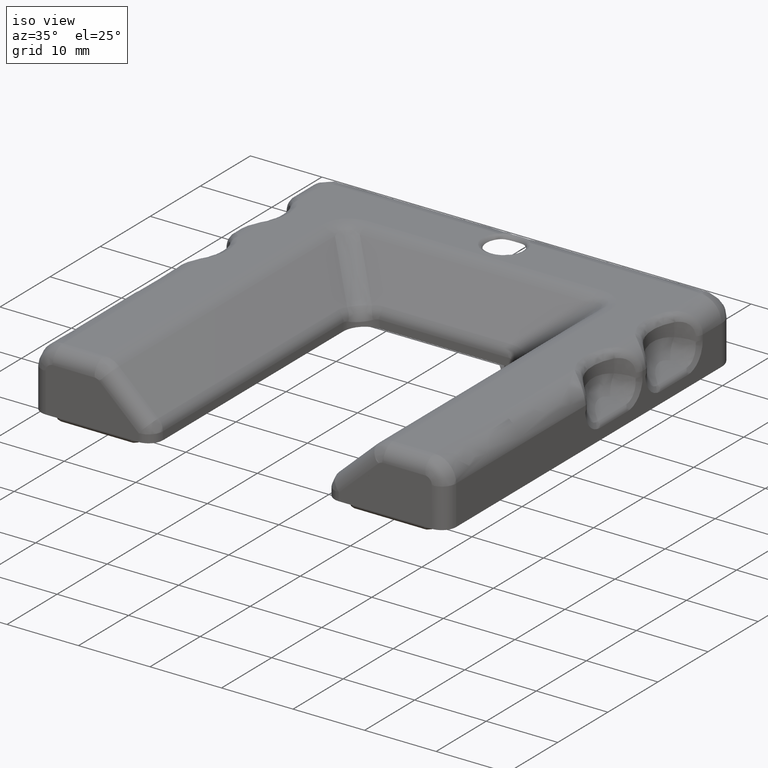
[diagram: clean part render]
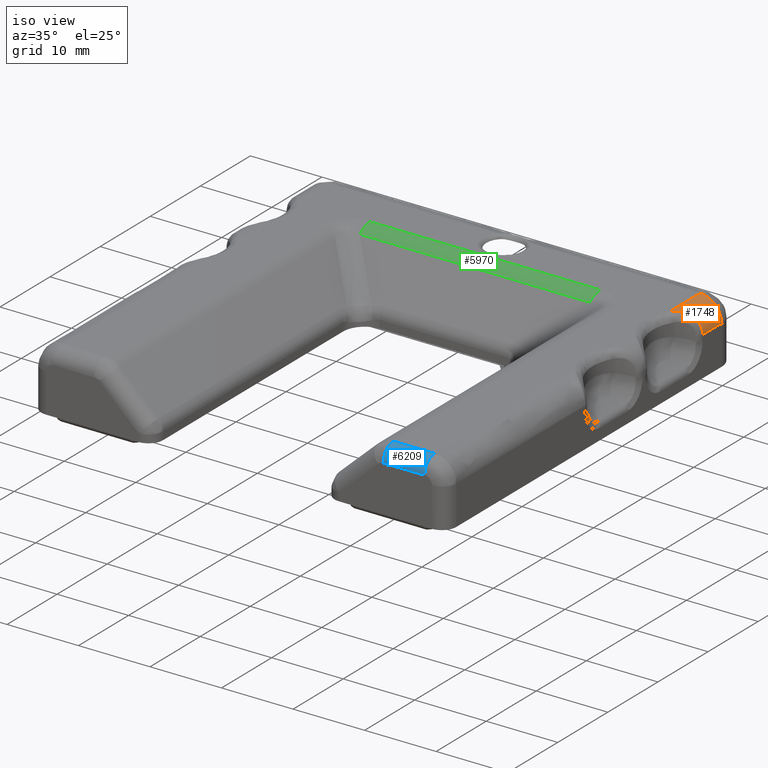
[diagram: same view with three faces highlighted in distinct colors, each labeled with its STEP entity id]
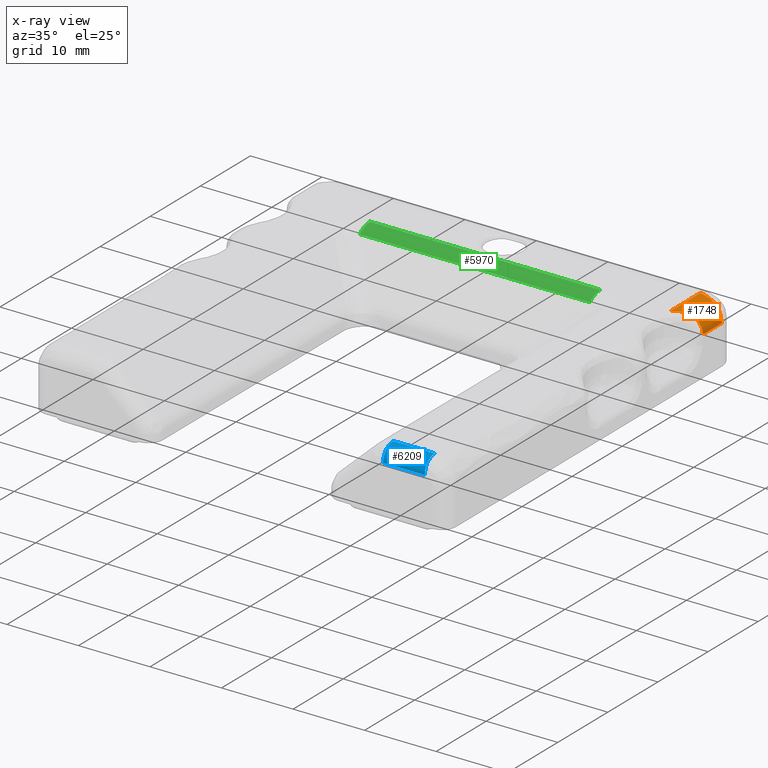
[diagram: x-ray of the same camera — body ghosted, the three highlighted faces saturated]
A machine part, iso view with three faces highlighted in distinct colors.
The next image is the same camera in x-ray (body ghosted, the three faces saturated) — at least one of them is partly hidden behind the body in this view.
Their STEP definitions:

[orange] entity #1748 — the highlighted face is a freeform B-spline surface patch.
#1257=CARTESIAN_POINT('',(28.999999999131099,-3.000000000000114,6.500000000004551));
#1258=VERTEX_POINT('',#1257);
#1264=CARTESIAN_POINT('',(28.999999999131099,-6.757300911116460,6.500000000004571));
#1265=VERTEX_POINT('',#1264);
#1266=CARTESIAN_POINT('',(28.999999999131099,-3.000000000000114,6.500000000004551));
#1267=CARTESIAN_POINT('',(28.999999999131099,-6.757300911116460,6.500000000004571));
#1268=QUASI_UNIFORM_CURVE('',1,(#1266,#1267),.UNSPECIFIED.,.F.,.U.);
#1269=EDGE_CURVE('',#1258,#1265,#1268,.T.);
#1674=CARTESIAN_POINT('',(28.998971974057721,-9.042824429727309,6.421469155080965));
#1675=CARTESIAN_POINT('',(28.998971974057721,-2.848929389256932,6.421469155080928));
#1676=CARTESIAN_POINT('',(29.085476779629847,-9.042824429727292,9.724954401668738));
#1677=CARTESIAN_POINT('',(29.085476779629847,-2.848929389256911,9.724954401668702));
#1678=CARTESIAN_POINT('',(25.789039772253098,-9.042824429727295,9.492573438147009));
#1679=CARTESIAN_POINT('',(25.789039772253098,-2.848929389256914,9.492573438146973));
#1687=(BOUNDED_SURFACE()B_SPLINE_SURFACE(1,2,((#1674,#1676,#1678),(#1675,#1677,#1679)),.UNSPECIFIED.,.F.,.F.,.U.)B_SPLINE_SURFACE_WITH_KNOTS((2,2),(3,3),(0.0,6.193895040470381),(0.0,5.313427032265088),.UNSPECIFIED.)GEOMETRIC_REPRESENTATION_ITEM()RATIONAL_B_SPLINE_SURFACE(((1.0,0.670944223154768,0.996392648609106),(1.0,0.670944223154768,0.996392648609106)))REPRESENTATION_ITEM('')SURFACE());
#1688=CARTESIAN_POINT('',(25.999999999131049,-8.895438468026628,9.500000000004581));
#1689=VERTEX_POINT('',#1688);
#1690=CARTESIAN_POINT('',(25.999999999131049,-3.000000000000093,9.500000000004549));
#1691=VERTEX_POINT('',#1690);
#1692=CARTESIAN_POINT('',(25.999999999131049,-8.895438468026628,9.500000000004581));
#1693=CARTESIAN_POINT('',(25.999999999131049,-3.000000000000093,9.500000000004549));
#1694=QUASI_UNIFORM_CURVE('',1,(#1692,#1693),.UNSPECIFIED.,.F.,.U.);
#1695=EDGE_CURVE('',#1689,#1691,#1694,.T.);
#1696=ORIENTED_EDGE('',*,*,#1695,.F.);
#1697=CARTESIAN_POINT('',(25.999999999131049,-8.895438468026628,9.500000000004581));
#1698=CARTESIAN_POINT('',(26.149692984541801,-8.729429740469044,9.499999999903302));
#1699=CARTESIAN_POINT('',(26.305371884589210,-8.572343899600220,9.488825933987648));
#1700=CARTESIAN_POINT('',(26.625983608693691,-8.274236807632049,9.438448055124313));
#1701=CARTESIAN_POINT('',(26.790931777277478,-8.133218834272405,9.399308430719962));
#1702=CARTESIAN_POINT('',(27.043428693482731,-7.932850764965468,9.314097932439163));
#1703=CARTESIAN_POINT('',(27.128723990503381,-7.867723723007708,9.281118924398674));
#1704=CARTESIAN_POINT('',(27.298736373264639,-7.742495547013822,9.205905421637928));
#1705=CARTESIAN_POINT('',(27.383393222707451,-7.682428794089967,9.163704528535378));
#1706=CARTESIAN_POINT('',(27.633027231770559,-7.511088925859443,9.023809930024692));
#1707=CARTESIAN_POINT('',(27.794643173638811,-7.407936846057424,8.912562407830821));
#1708=CARTESIAN_POINT('',(27.987534397273691,-7.291446381451330,8.747728210813534));
#1709=CARTESIAN_POINT('',(28.025771238715109,-7.268705541735256,8.713345987180132));
#1710=CARTESIAN_POINT('',(28.100509674406450,-7.224875422392554,8.642547240591474));
#1711=CARTESIAN_POINT('',(28.137015142003040,-7.203780853426945,8.606142116331904));
#1712=CARTESIAN_POINT('',(28.243877430094749,-7.142836254829081,8.493912589598050));
#1713=CARTESIAN_POINT('',(28.311585770554551,-7.105318926349080,8.415081036122547));
#1714=CARTESIAN_POINT('',(28.439483069114431,-7.036017226041292,8.249253127716719));
#1715=CARTESIAN_POINT('',(28.499674628286598,-7.004232731646169,8.162258817481298));
#1716=CARTESIAN_POINT('',(28.583827548127040,-6.960642289016924,8.025353927468684));
#1717=CARTESIAN_POINT('',(28.610854246200439,-6.946794807991104,7.978647947919688));
#1718=CARTESIAN_POINT('',(28.662748309759959,-6.920450484247620,7.883015215957295));
#1719=CARTESIAN_POINT('',(28.687611486001980,-6.907956741197893,7.834063904056301));
#1720=CARTESIAN_POINT('',(28.804537269650179,-6.849681989704018,7.587328271290765));
#1721=CARTESIAN_POINT('',(28.876271034920681,-6.815453620138251,7.380879141822541));
#1722=CARTESIAN_POINT('',(28.937559480497139,-6.786487312150604,7.111391437055717));
#1723=CARTESIAN_POINT('',(28.948383425477431,-6.781397705541608,7.056915751890511));
#1724=CARTESIAN_POINT('',(28.967071104437409,-6.772636094020681,6.946776274563626));
#1725=CARTESIAN_POINT('',(28.974918874112358,-6.768971575962806,6.891141405449812));
#1726=CARTESIAN_POINT('',(28.993701247467602,-6.760216544073574,6.724250937133615));
#1727=CARTESIAN_POINT('',(28.999999999131060,-6.757300911116481,6.612415708653785));
#1728=CARTESIAN_POINT('',(28.999999999131049,-6.757300911116479,6.500000000004570));
#1729=B_SPLINE_CURVE_WITH_KNOTS('',3,(#1697,#1698,#1699,#1700,#1701,#1702,#1703,#1704,#1705,#1706,#1707,#1708,#1709,#1710,#1711,#1712,#1713,#1714,#1715,#1716,#1717,#1718,#1719,#1720,#1721,#1722,#1723,#1724,#1725,#1726,#1727,#1728),.UNSPECIFIED.,.F.,.U.,(4,2,2,2,2,2,2,2,2,2,2,2,2,2,2,4),(0.0,0.125000000000000,0.250000000000000,0.312499999999999,0.374999999999999,0.499999999999998,0.531249999999998,0.562499999999997,0.624999999999998,0.687499999999998,0.718749999999998,0.749999999999998,0.874999999999999,0.906249999999999,0.937500000000000,1.0),.UNSPECIFIED.);
#1730=EDGE_CURVE('',#1689,#1265,#1729,.T.);
#1731=ORIENTED_EDGE('',*,*,#1730,.T.);
#1732=ORIENTED_EDGE('',*,*,#1269,.F.);
#1733=CARTESIAN_POINT('',(28.999999999131049,-3.000000000000114,6.500000000004551));
#1734=CARTESIAN_POINT('',(28.999999999131049,-3.000000000000114,9.500000000004551));
#1735=CARTESIAN_POINT('',(25.999999999131049,-3.000000000000113,9.500000000004549));
#1743=(BOUNDED_CURVE()B_SPLINE_CURVE(2,(#1733,#1734,#1735),.UNSPECIFIED.,.F.,.U.)CURVE()GEOMETRIC_REPRESENTATION_ITEM()QUASI_UNIFORM_CURVE()RATIONAL_B_SPLINE_CURVE((1.0,0.707106781186548,1.0))REPRESENTATION_ITEM(''));
#1744=EDGE_CURVE('',#1258,#1691,#1743,.T.);
#1745=ORIENTED_EDGE('',*,*,#1744,.T.);
#1746=EDGE_LOOP('',(#1696,#1731,#1732,#1745));
#1747=FACE_OUTER_BOUND('',#1746,.T.);
#1748=ADVANCED_FACE('',(#1747),#1687,.T.);

[blue] entity #6209 — the highlighted face is a freeform B-spline surface patch.
#2284=CARTESIAN_POINT('',(25.999999999131049,-56.000000000020400,9.500000000004871));
#2285=VERTEX_POINT('',#2284);
#3244=CARTESIAN_POINT('',(20.178070733639402,-55.999999999989598,9.500000000004871));
#3245=VERTEX_POINT('',#3244);
#3251=CARTESIAN_POINT('',(20.178070733639402,-55.999999999989598,9.500000000004871));
#3252=CARTESIAN_POINT('',(25.999999999131049,-56.000000000020400,9.500000000004871));
#3253=QUASI_UNIFORM_CURVE('',1,(#3251,#3252),.UNSPECIFIED.,.F.,.U.);
#3254=EDGE_CURVE('',#3245,#2285,#3253,.T.);
#3776=CARTESIAN_POINT('',(25.999999999119101,-58.000000000024400,7.500000000004870));
#3777=VERTEX_POINT('',#3776);
#3791=CARTESIAN_POINT('',(20.178070733627401,-57.999999999989612,7.500000000004870));
#3792=VERTEX_POINT('',#3791);
#3793=CARTESIAN_POINT('',(25.999999999119101,-58.000000000024400,7.500000000004870));
#3794=CARTESIAN_POINT('',(20.178070733627401,-57.999999999989612,7.500000000004870));
#3795=QUASI_UNIFORM_CURVE('',1,(#3793,#3794),.UNSPECIFIED.,.F.,.U.);
#3796=EDGE_CURVE('',#3777,#3792,#3795,.T.);
#4978=CARTESIAN_POINT('',(25.999999999119101,-58.000000000024400,7.500000000004870));
#4979=CARTESIAN_POINT('',(25.999999999119151,-58.000051001215532,7.671810103936279));
#4980=CARTESIAN_POINT('',(25.999999999119279,-57.964983977050103,7.941758763187824));
#4981=CARTESIAN_POINT('',(25.999999999120170,-57.834215188883661,8.321871344172187));
#4982=CARTESIAN_POINT('',(25.999999999121169,-57.647929231328810,8.660367558646193));
#4983=CARTESIAN_POINT('',(25.999999999123080,-57.339114713696993,9.014037120593214));
#4984=CARTESIAN_POINT('',(25.999999999125190,-56.978294005651868,9.261550725490173));
#4985=CARTESIAN_POINT('',(25.999999999127962,-56.523531714197027,9.449909622021712));
#4986=CARTESIAN_POINT('',(25.999999999129759,-56.212731048587138,9.500130325437739));
#4987=CARTESIAN_POINT('',(25.999999999131049,-56.000000000020400,9.500000000004871));
#4988=B_SPLINE_CURVE_WITH_KNOTS('',3,(#4978,#4979,#4980,#4981,#4982,#4983,#4984,#4985,#4986,#4987),.UNSPECIFIED.,.F.,.U.,(4,1,1,1,1,1,1,4),(0.000000074901787,0.515413531143387,0.809947447058659,1.202660727518055,1.668966533235482,2.208942674058351,2.503475915421859,3.141612365761286),.UNSPECIFIED.);
#4989=EDGE_CURVE('',#3777,#2285,#4988,.T.);
#6177=CARTESIAN_POINT('',(20.032522501990108,-57.999314649939883,7.447646103389121));
#6178=CARTESIAN_POINT('',(26.149186936547331,-57.999314649976462,7.447646103389121));
#6179=CARTESIAN_POINT('',(20.032522501989774,-58.056448902380751,9.629515177193113));
#6180=CARTESIAN_POINT('',(26.149186936546982,-58.056448902417330,9.629515177193113));
#6181=CARTESIAN_POINT('',(20.032522502002799,-55.877902920919048,9.496269596848617));
#6182=CARTESIAN_POINT('',(26.149186936560010,-55.877902920955627,9.496269596848610));
#6190=(BOUNDED_SURFACE()B_SPLINE_SURFACE(1,2,((#6177,#6179,#6181),(#6178,#6180,#6182)),.UNSPECIFIED.,.F.,.F.,.U.)B_SPLINE_SURFACE_WITH_KNOTS((2,2),(3,3),(0.0,6.116664434557215),(0.0,3.520084247134698),.UNSPECIFIED.)GEOMETRIC_REPRESENTATION_ITEM()RATIONAL_B_SPLINE_SURFACE(((1.0,0.675590207615660,1.0),(1.0,0.675590207615660,1.0)))REPRESENTATION_ITEM('')SURFACE());
#6191=ORIENTED_EDGE('',*,*,#3254,.F.);
#6192=CARTESIAN_POINT('',(20.178070733639402,-55.999999999989598,9.500000000004869));
#6193=CARTESIAN_POINT('',(20.178070733627443,-57.999999999989605,9.500000000004869));
#6194=CARTESIAN_POINT('',(20.178070733627450,-57.999999999989612,7.500000000004870));
#6202=(BOUNDED_CURVE()B_SPLINE_CURVE(2,(#6192,#6193,#6194),.UNSPECIFIED.,.F.,.U.)CURVE()GEOMETRIC_REPRESENTATION_ITEM()QUASI_UNIFORM_CURVE()RATIONAL_B_SPLINE_CURVE((1.0,0.707106781186548,1.0))REPRESENTATION_ITEM(''));
#6203=EDGE_CURVE('',#3245,#3792,#6202,.T.);
#6204=ORIENTED_EDGE('',*,*,#6203,.T.);
#6205=ORIENTED_EDGE('',*,*,#3796,.F.);
#6206=ORIENTED_EDGE('',*,*,#4989,.T.);
#6207=EDGE_LOOP('',(#6191,#6204,#6205,#6206));
#6208=FACE_OUTER_BOUND('',#6207,.T.);
#6209=ADVANCED_FACE('',(#6208),#6190,.T.);

[green] entity #5970 — the highlighted face is a freeform B-spline surface patch.
#3207=CARTESIAN_POINT('',(-16.095364137807550,-8.821929267303418,9.500000000004581));
#3208=VERTEX_POINT('',#3207);
#3222=CARTESIAN_POINT('',(16.095364137730300,-8.821929267303299,9.500000000004581));
#3223=VERTEX_POINT('',#3222);
#3224=CARTESIAN_POINT('',(-16.095364137807550,-8.821929267303418,9.500000000004581));
#3225=CARTESIAN_POINT('',(16.095364137730300,-8.821929267303299,9.500000000004581));
#3226=QUASI_UNIFORM_CURVE('',1,(#3224,#3225),.UNSPECIFIED.,.F.,.U.);
#3227=EDGE_CURVE('',#3208,#3223,#3226,.T.);
#5900=CARTESIAN_POINT('',(-16.095364137807501,-10.863282565386699,8.698380474900722));
#5901=VERTEX_POINT('',#5900);
#5915=CARTESIAN_POINT('',(-16.095364137807550,-8.821929267303428,9.500000000004581));
#5916=CARTESIAN_POINT('',(-16.095364137807554,-9.999999999875607,9.500000000004581));
#5917=CARTESIAN_POINT('',(-16.095364137807550,-10.863282565386690,8.698380474900720));
#5925=(BOUNDED_CURVE()B_SPLINE_CURVE(2,(#5915,#5916,#5917),.UNSPECIFIED.,.F.,.U.)CURVE()GEOMETRIC_REPRESENTATION_ITEM()QUASI_UNIFORM_CURVE()RATIONAL_B_SPLINE_CURVE((1.0,0.930804354209854,1.0))REPRESENTATION_ITEM(''));
#5926=EDGE_CURVE('',#3208,#5901,#5925,.T.);
#5932=CARTESIAN_POINT('',(-16.900132344695990,-10.920129936647770,8.644190745055726));
#5933=CARTESIAN_POINT('',(16.920251549791011,-10.920129936647770,8.644190745055726));
#5934=CARTESIAN_POINT('',(-16.900132344695997,-9.999629212386665,9.544947937592967));
#5935=CARTESIAN_POINT('',(16.920251549791011,-9.999629212386665,9.544947937592967));
#5936=CARTESIAN_POINT('',(-16.900132344695987,-8.712585460330327,9.498006659749789));
#5937=CARTESIAN_POINT('',(16.920251549791004,-8.712585460330327,9.498006659749789));
#5945=(BOUNDED_SURFACE()B_SPLINE_SURFACE(1,2,((#5932,#5934,#5936),(#5933,#5935,#5937)),.UNSPECIFIED.,.F.,.F.,.U.)B_SPLINE_SURFACE_WITH_KNOTS((2,2),(3,3),(0.0,33.820383894487001),(0.0,2.466938868509199),.UNSPECIFIED.)GEOMETRIC_REPRESENTATION_ITEM()RATIONAL_B_SPLINE_SURFACE(((1.0,0.918025388177835,0.998091842430352),(1.0,0.918025388177835,0.998091842430352)))REPRESENTATION_ITEM('')SURFACE());
#5946=ORIENTED_EDGE('',*,*,#5926,.T.);
#5947=CARTESIAN_POINT('',(16.095364137730350,-10.863282565386699,8.698380474900732));
#5948=VERTEX_POINT('',#5947);
#5949=CARTESIAN_POINT('',(16.095364137730350,-10.863282565386699,8.698380474900732));
#5950=CARTESIAN_POINT('',(-16.095364137807501,-10.863282565386699,8.698380474900722));
#5951=QUASI_UNIFORM_CURVE('',1,(#5949,#5950),.UNSPECIFIED.,.F.,.U.);
#5952=EDGE_CURVE('',#5948,#5901,#5951,.T.);
#5953=ORIENTED_EDGE('',*,*,#5952,.F.);
#5954=CARTESIAN_POINT('',(16.095364137730300,-8.821929267303299,9.500000000004581));
#5955=CARTESIAN_POINT('',(16.095364137730304,-9.999999999875609,9.500000000004581));
#5956=CARTESIAN_POINT('',(16.095364137730300,-10.863282565386699,8.698380474900729));
#5964=(BOUNDED_CURVE()B_SPLINE_CURVE(2,(#5954,#5955,#5956),.UNSPECIFIED.,.F.,.U.)CURVE()GEOMETRIC_REPRESENTATION_ITEM()QUASI_UNIFORM_CURVE()RATIONAL_B_SPLINE_CURVE((1.0,0.930804354209855,1.0))REPRESENTATION_ITEM(''));
#5965=EDGE_CURVE('',#3223,#5948,#5964,.T.);
#5966=ORIENTED_EDGE('',*,*,#5965,.F.);
#5967=ORIENTED_EDGE('',*,*,#3227,.F.);
#5968=EDGE_LOOP('',(#5946,#5953,#5966,#5967));
#5969=FACE_OUTER_BOUND('',#5968,.T.);
#5970=ADVANCED_FACE('',(#5969),#5945,.T.);